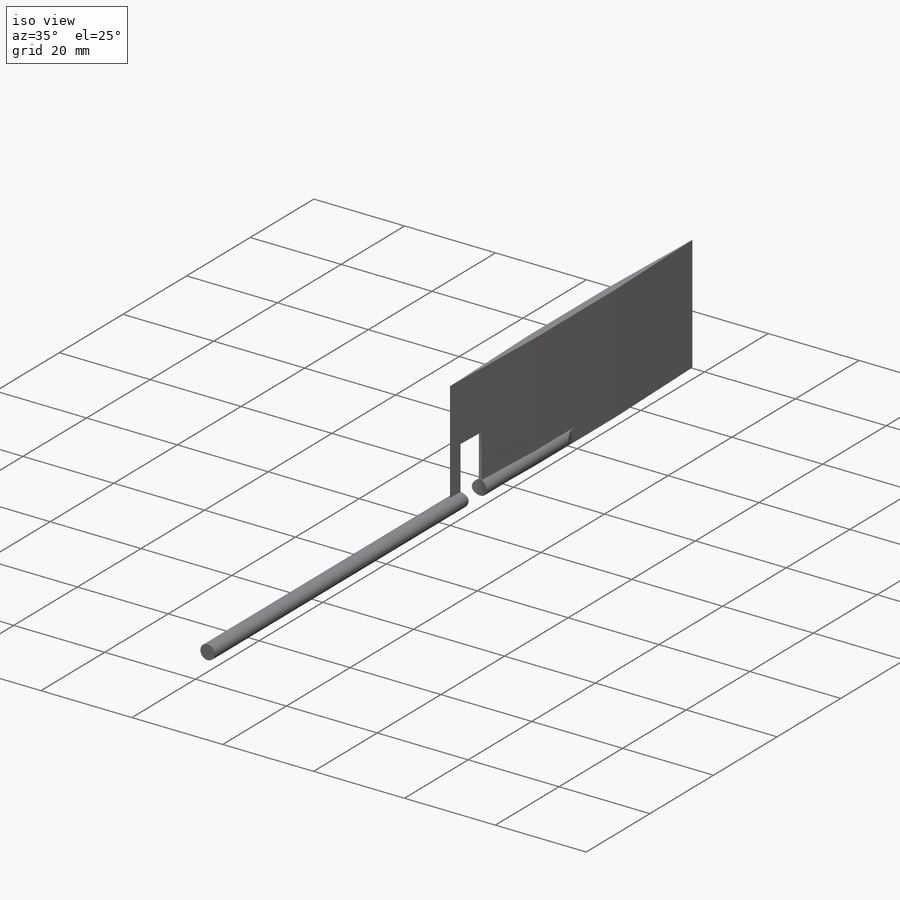
[diagram: iso view]
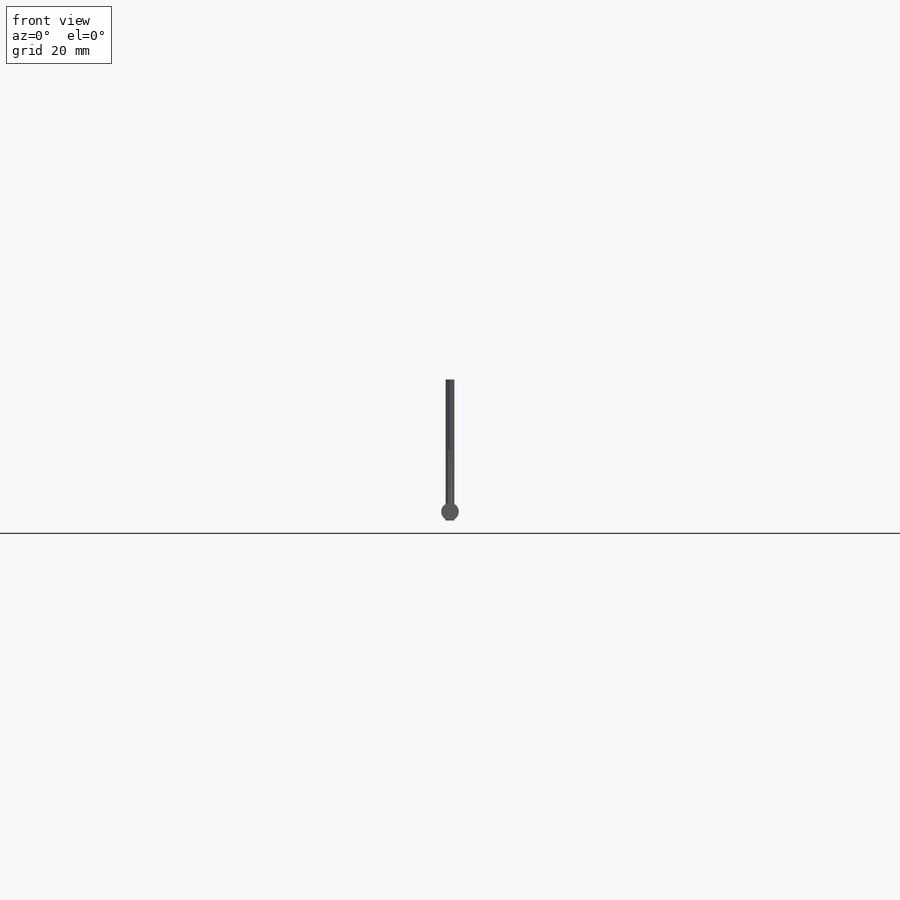
[diagram: front view]
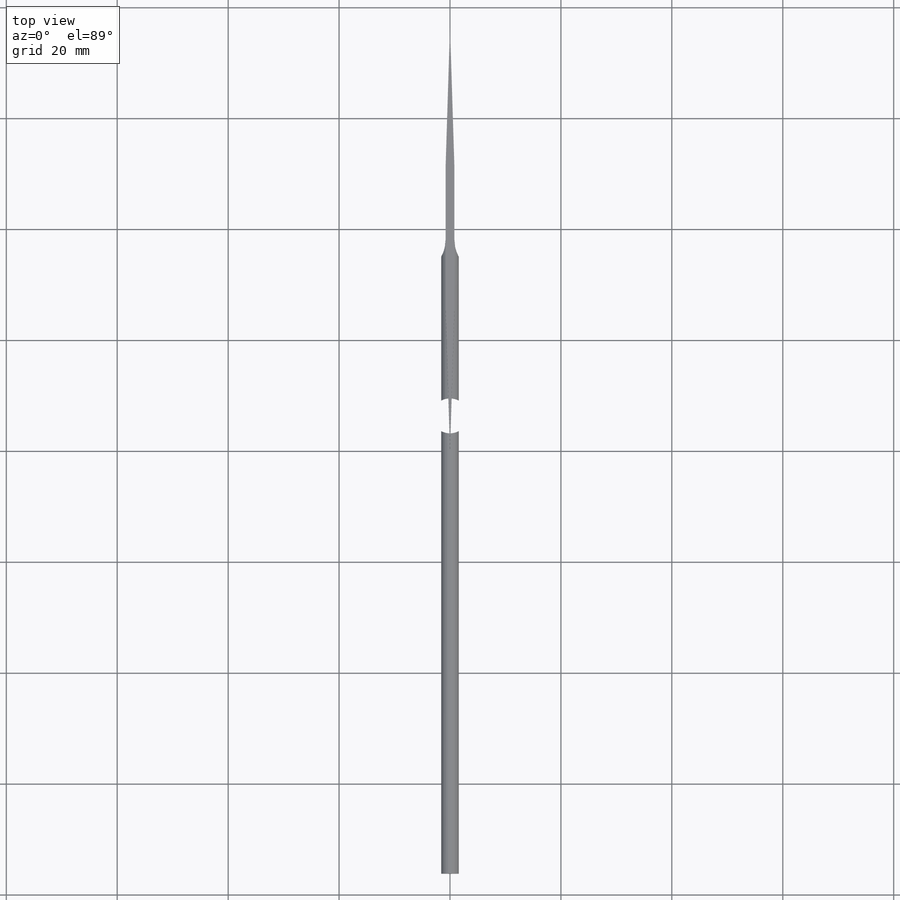
[diagram: top view]
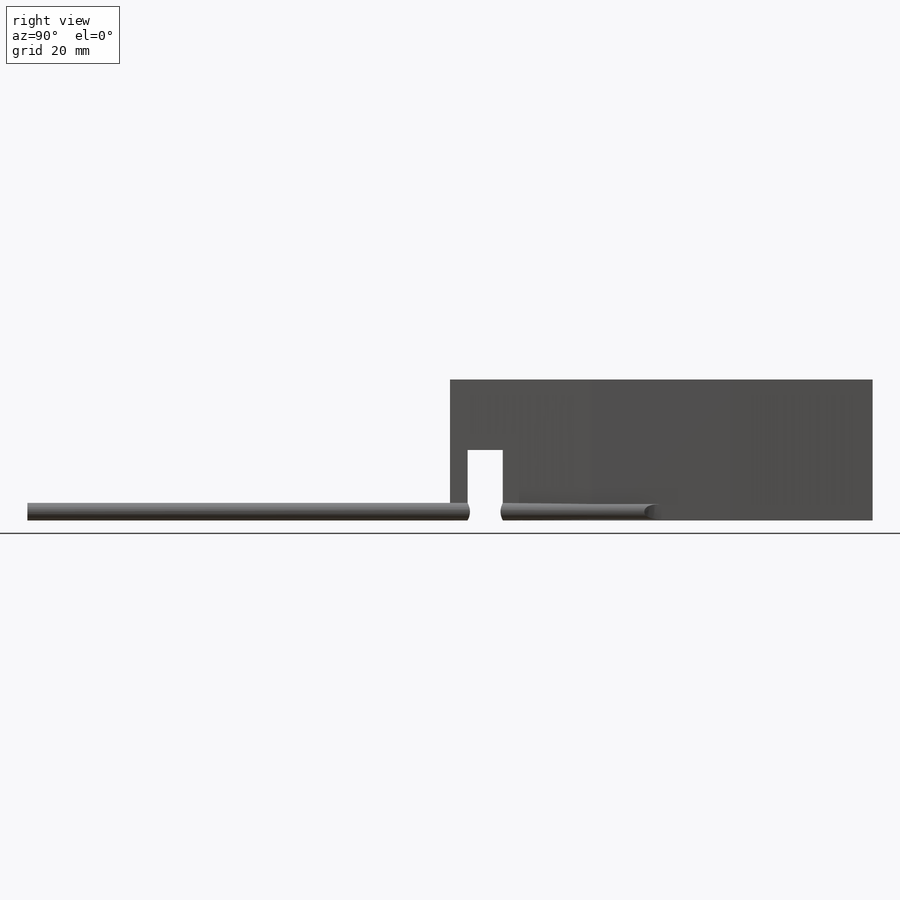
[diagram: right view]
SOLIDWORKS PART (.sldprt)
format: sldprt  version: not decoded by parser v0  size: 204,800 bytes
history: native  units: mm
features: sketch x3, extrude x2, fillet x2, material x1, cut_extrude x1 (+11 scaffold rows collapsed)
feature tree (20):
  scaffold x11  (default folders/planes/origin — collapsed)
  material  "Material <not specified>"
  sketch  "Sketch1"  dims[c1.D1=1.5875mm c1.D2=76.2mm c1.D3=25.4mm c2.D1=25.4mm c2.D4=~0.79375mm c2.D5=~25.412399mm]
  extrude  "Boss-Extrude1"  Depth=25.4mm
  fillet  "Fillet1"  Radius=12.7mm
  sketch  "Sketch3"  dims[D1=3.175mm D2=1.5875mm]
  extrude  "Boss-Extrude2"  Depth=76.2mm
  fillet  "Fillet2"  Radius=6.35mm
  sketch  "Sketch4"  dims[D1=6.35mm D2=6.35mm]
  cut_extrude  "Cut-Extrude2"  Depth=12.7mm
decode coverage: 8 of 8 modeling features carry decoded parameters
note: ~ marks probable driven/reference dimensions
note: suppression state not decoded; provenance and decode notes live in map.json
